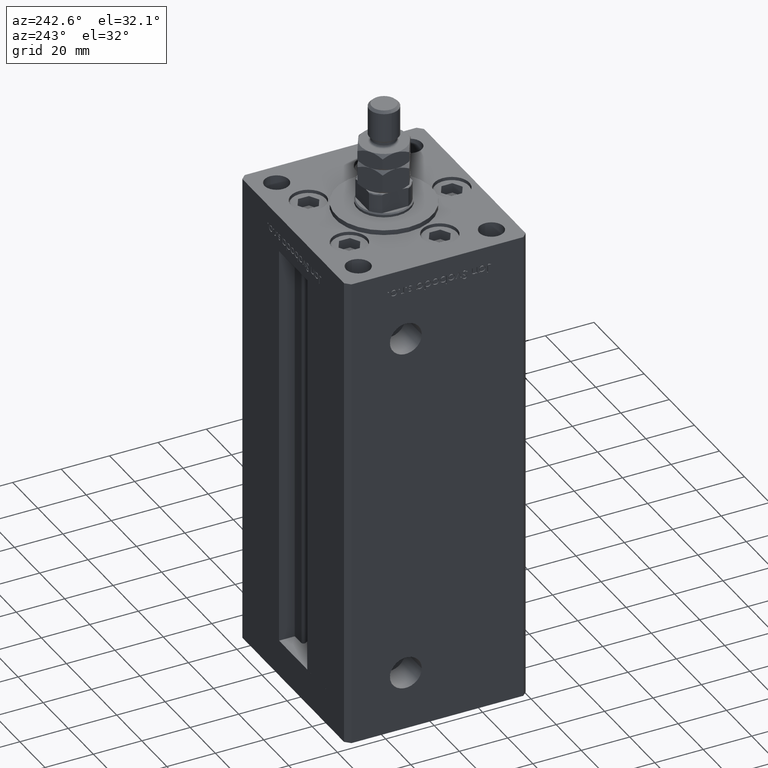
[diagram: clean part render]
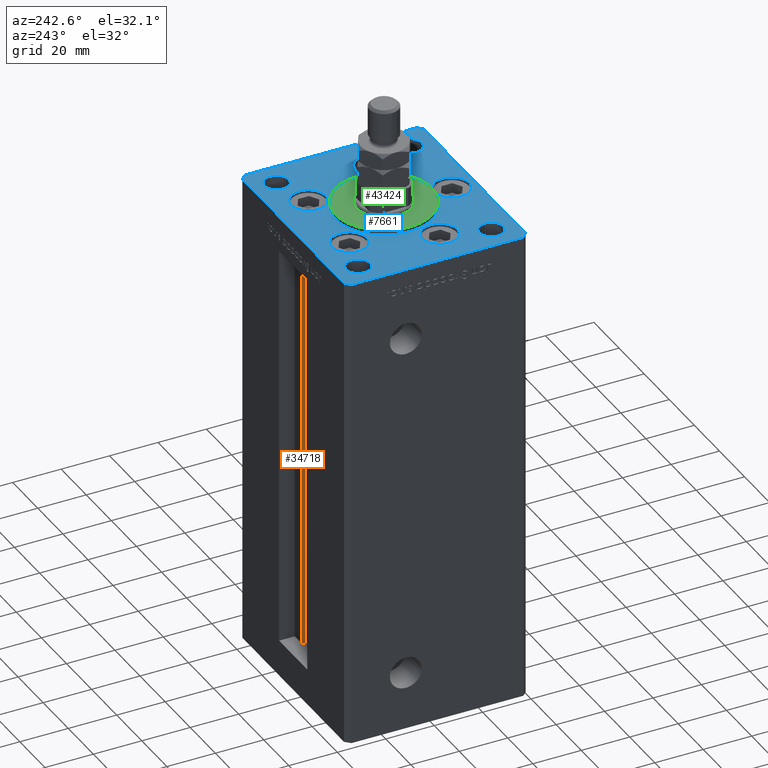
[diagram: same view with three faces highlighted in distinct colors, each labeled with its STEP entity id]
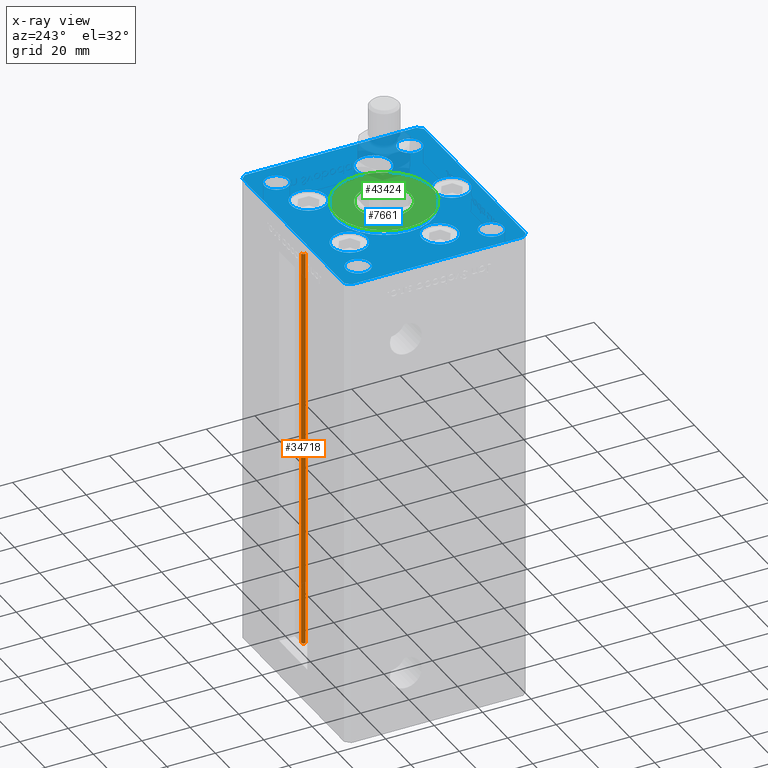
[diagram: x-ray of the same camera — body ghosted, the three highlighted faces saturated]
A machine part, auxiliary view with three faces highlighted in distinct colors.
The next image is the same camera in x-ray (body ghosted, the three faces saturated) — at least one of them is partly hidden behind the body in this view.
Their STEP definitions:

[orange] entity #34718 — the highlighted cylindrical surface (edge-blend (fillet) strip) has radius 0.9333 mm, axis along (0, 0, 1).
#2044 = AXIS2_PLACEMENT_3D ( 'NONE', #38923, #14186, #6307 ) ;
#2215 = EDGE_CURVE ( 'NONE', #42383, #16028, #41298, .T. ) ;
#2235 = CYLINDRICAL_SURFACE ( 'NONE', #2044, 0.9333333333340015914 ) ;
#2566 = EDGE_CURVE ( 'NONE', #41255, #47532, #17873, .T. ) ;
#6307 = DIRECTION ( 'NONE',  ( 1.000000000000000000, 0.000000000000000000, 0.000000000000000000 ) ) ;
#7155 = ORIENTED_EDGE ( 'NONE', *, *, #42105, .F. ) ;
#8721 = ORIENTED_EDGE ( 'NONE', *, *, #36910, .T. ) ;
#11903 = CARTESIAN_POINT ( 'NONE',  ( 6.183333333333999704, 30.99999999999999289, 0.000000000000000000 ) ) ;
#14186 = DIRECTION ( 'NONE',  ( -0.000000000000000000, -0.000000000000000000, 1.000000000000000000 ) ) ;
#15123 = VECTOR ( 'NONE', #30088, 1000.000000000000000 ) ;
#15387 = CARTESIAN_POINT ( 'NONE',  ( 5.375042956467944499, 29.59999999999898890, 168.5000000000000000 ) ) ;
#16028 = VERTEX_POINT ( 'NONE', #27339 ) ;
#17347 = EDGE_LOOP ( 'NONE', ( #7155, #51778, #8721, #29095 ) ) ;
#17873 = CIRCLE ( 'NONE', #39562, 0.9333333333340015914 ) ;
#18001 = FACE_OUTER_BOUND ( 'NONE', #17347, .T. ) ;
#20703 = DIRECTION ( 'NONE',  ( 0.000000000000000000, 0.000000000000000000, -1.000000000000000000 ) ) ;
#23579 = CARTESIAN_POINT ( 'NONE',  ( 6.183333333333999704, 30.06666666666599141, 0.000000000000000000 ) ) ;
#24423 = DIRECTION ( 'NONE',  ( -0.000000000000000000, -0.000000000000000000, 1.000000000000000000 ) ) ;
#25744 = LINE ( 'NONE', #38522, #15123 ) ;
#27339 = CARTESIAN_POINT ( 'NONE',  ( 6.183333333333999704, 30.99999999999999289, 0.000000000000000000 ) ) ;
#29095 = ORIENTED_EDGE ( 'NONE', *, *, #2566, .T. ) ;
#30088 = DIRECTION ( 'NONE',  ( -0.000000000000000000, -0.000000000000000000, 1.000000000000000000 ) ) ;
#34718 = ADVANCED_FACE ( 'NONE', ( #18001 ), #2235, .T. ) ;
#36064 = DIRECTION ( 'NONE',  ( -0.000000000000000000, -0.000000000000000000, -1.000000000000000000 ) ) ;
#36910 = EDGE_CURVE ( 'NONE', #42383, #41255, #25744, .T. ) ;
#37663 = CARTESIAN_POINT ( 'NONE',  ( 6.183333333333999704, 30.99999999999999289, 168.5000000000000000 ) ) ;
#37876 = VECTOR ( 'NONE', #24423, 1000.000000000000000 ) ;
#38522 = CARTESIAN_POINT ( 'NONE',  ( 5.375042956467943611, 29.59999999999899245, 0.000000000000000000 ) ) ;
#38923 = CARTESIAN_POINT ( 'NONE',  ( 6.183333333333999704, 30.06666666666599141, 0.000000000000000000 ) ) ;
#39562 = AXIS2_PLACEMENT_3D ( 'NONE', #53569, #20703, #41082 ) ;
#41082 = DIRECTION ( 'NONE',  ( 1.000000000000000000, 0.000000000000000000, 0.000000000000000000 ) ) ;
#41255 = VERTEX_POINT ( 'NONE', #15387 ) ;
#41298 = CIRCLE ( 'NONE', #52587, 0.9333333333340015914 ) ;
#42105 = EDGE_CURVE ( 'NONE', #16028, #47532, #49119, .T. ) ;
#42383 = VERTEX_POINT ( 'NONE', #48138 ) ;
#47532 = VERTEX_POINT ( 'NONE', #37663 ) ;
#48138 = CARTESIAN_POINT ( 'NONE',  ( 5.375042956467943611, 29.59999999999899245, 0.000000000000000000 ) ) ;
#49119 = LINE ( 'NONE', #11903, #37876 ) ;
#51778 = ORIENTED_EDGE ( 'NONE', *, *, #2215, .F. ) ;
#52587 = AXIS2_PLACEMENT_3D ( 'NONE', #23579, #36064, #52632 ) ;
#52632 = DIRECTION ( 'NONE',  ( 1.000000000000000000, 0.000000000000000000, 0.000000000000000000 ) ) ;
#53569 = CARTESIAN_POINT ( 'NONE',  ( 6.183333333333999704, 30.06666666666599141, 168.5000000000000000 ) ) ;

[blue] entity #7661 — the highlighted planar face has unit normal (0, 0, 1).
#169 = EDGE_CURVE ( 'NONE', #36250, #38002, #19421, .T. ) ;
#345 = DIRECTION ( 'NONE',  ( -1.000000000000000000, -4.283267841918041508E-16, 0.000000000000000000 ) ) ;
#548 = CARTESIAN_POINT ( 'NONE',  ( -42.50000000000000000, -35.50000000000004263, 0.000000000000000000 ) ) ;
#569 = CARTESIAN_POINT ( 'NONE',  ( 42.50000000000001421, 35.50000000000002132, 0.000000000000000000 ) ) ;
#1111 = CIRCLE ( 'NONE', #23711, 7.249999999999999112 ) ;
#1242 = ORIENTED_EDGE ( 'NONE', *, *, #25523, .F. ) ;
#1543 = AXIS2_PLACEMENT_3D ( 'NONE', #9942, #14290, #13216 ) ;
#2078 = EDGE_CURVE ( 'NONE', #46442, #41746, #17066, .T. ) ;
#2375 = EDGE_LOOP ( 'NONE', ( #24927, #52544, #9329, #21200, #5778, #24818, #38513, #19623 ) ) ;
#2645 = DIRECTION ( 'NONE',  ( 0.000000000000000000, 0.000000000000000000, 1.000000000000000000 ) ) ;
#2768 = DIRECTION ( 'NONE',  ( 1.000000000000000000, 0.000000000000000000, 0.000000000000000000 ) ) ;
#2993 = EDGE_LOOP ( 'NONE', ( #40167, #32304 ) ) ;
#3162 = DIRECTION ( 'NONE',  ( 1.000000000000000000, 0.000000000000000000, 0.000000000000000000 ) ) ;
#3209 = CARTESIAN_POINT ( 'NONE',  ( 27.50000000000000355, 27.49999999999999645, 0.000000000000000000 ) ) ;
#3375 = VERTEX_POINT ( 'NONE', #25118 ) ;
#4284 = CIRCLE ( 'NONE', #34671, 4.999999999999997335 ) ;
#4366 = CARTESIAN_POINT ( 'NONE',  ( 32.50000000000000000, -27.50000000000000355, 0.000000000000000000 ) ) ;
#4962 = DIRECTION ( 'NONE',  ( -0.000000000000000000, -0.000000000000000000, -1.000000000000000000 ) ) ;
#5025 = LINE ( 'NONE', #17797, #44069 ) ;
#5169 = LINE ( 'NONE', #47003, #44205 ) ;
#5566 = AXIS2_PLACEMENT_3D ( 'NONE', #32915, #41055, #20678 ) ;
#5778 = ORIENTED_EDGE ( 'NONE', *, *, #18572, .T. ) ;
#5802 = CIRCLE ( 'NONE', #45720, 7.249999999999999112 ) ;
#5853 = EDGE_CURVE ( 'NONE', #37620, #27777, #33522, .T. ) ;
#5880 = EDGE_CURVE ( 'NONE', #22362, #19020, #47381, .T. ) ;
#5976 = ORIENTED_EDGE ( 'NONE', *, *, #18637, .F. ) ;
#6290 = ORIENTED_EDGE ( 'NONE', *, *, #5853, .F. ) ;
#7160 = FACE_BOUND ( 'NONE', #26911, .T. ) ;
#7661 = ADVANCED_FACE ( 'NONE', ( #35970, #48447, #11227, #27013, #7160, #19118, #44650, #23741, #35698, #15590, #19660 ), #36229, .T. ) ;
#7742 = CARTESIAN_POINT ( 'NONE',  ( -9.072913342905442491, 22.74999999999999289, 0.000000000000000000 ) ) ;
#8329 = VECTOR ( 'NONE', #30108, 1000.000000000000000 ) ;
#8628 = EDGE_CURVE ( 'NONE', #21466, #14293, #37118, .T. ) ;
#8903 = VECTOR ( 'NONE', #40092, 1000.000000000000000 ) ;
#9329 = ORIENTED_EDGE ( 'NONE', *, *, #9430, .T. ) ;
#9420 = AXIS2_PLACEMENT_3D ( 'NONE', #15583, #49506, #15846 ) ;
#9430 = EDGE_CURVE ( 'NONE', #41746, #34884, #5025, .T. ) ;
#9498 = AXIS2_PLACEMENT_3D ( 'NONE', #32515, #23819, #45252 ) ;
#9707 = DIRECTION ( 'NONE',  ( 0.000000000000000000, 0.000000000000000000, 1.000000000000000000 ) ) ;
#9762 = VERTEX_POINT ( 'NONE', #43263 ) ;
#9912 = DIRECTION ( 'NONE',  ( -1.000000000000000000, 0.000000000000000000, 0.000000000000000000 ) ) ;
#9942 = CARTESIAN_POINT ( 'NONE',  ( 26.39865316429777664, -9.333333333333330373, 0.000000000000000000 ) ) ;
#10046 = CARTESIAN_POINT ( 'NONE',  ( 32.50000000000000000, 27.49999999999999645, 0.000000000000000000 ) ) ;
#10244 = DIRECTION ( 'NONE',  ( 1.000000000000000000, 0.000000000000000000, 0.000000000000000000 ) ) ;
#10438 = DIRECTION ( 'NONE',  ( 0.000000000000000000, 0.000000000000000000, 1.000000000000000000 ) ) ;
#11126 = CARTESIAN_POINT ( 'NONE',  ( 0.000000000000000000, -6.938893903907228378E-15, 0.000000000000000000 ) ) ;
#11227 = FACE_BOUND ( 'NONE', #21920, .T. ) ;
#12018 = VECTOR ( 'NONE', #51712, 1000.000000000000000 ) ;
#12087 = CIRCLE ( 'NONE', #39014, 20.00000000000000000 ) ;
#12111 = CARTESIAN_POINT ( 'NONE',  ( 23.57291334290544071, 22.74999999999999289, 0.000000000000000000 ) ) ;
#12122 = AXIS2_PLACEMENT_3D ( 'NONE', #21990, #38557, #26331 ) ;
#12244 = EDGE_CURVE ( 'NONE', #25896, #33450, #46727, .T. ) ;
#12835 = VERTEX_POINT ( 'NONE', #42287 ) ;
#13216 = DIRECTION ( 'NONE',  ( 1.000000000000000000, 0.000000000000000000, 0.000000000000000000 ) ) ;
#13421 = CARTESIAN_POINT ( 'NONE',  ( -32.50000000000000000, 27.50000000000000711, 0.000000000000000000 ) ) ;
#13510 = CARTESIAN_POINT ( 'NONE',  ( 37.50000000000000000, -27.50000000000000355, 0.000000000000000000 ) ) ;
#13836 = CIRCLE ( 'NONE', #29445, 4.999999999999997335 ) ;
#13903 = EDGE_CURVE ( 'NONE', #26708, #35127, #26890, .T. ) ;
#14290 = DIRECTION ( 'NONE',  ( 0.000000000000000000, 0.000000000000000000, 1.000000000000000000 ) ) ;
#14291 = DIRECTION ( 'NONE',  ( 1.000000000000000000, 0.000000000000000000, 0.000000000000000000 ) ) ;
#14293 = VERTEX_POINT ( 'NONE', #29456 ) ;
#14675 = DIRECTION ( 'NONE',  ( 0.000000000000000000, 0.000000000000000000, 1.000000000000000000 ) ) ;
#14774 = DIRECTION ( 'NONE',  ( 1.000000000000000000, 0.000000000000000000, 0.000000000000000000 ) ) ;
#14987 = DIRECTION ( 'NONE',  ( 1.000000000000000000, 0.000000000000000000, 0.000000000000000000 ) ) ;
#15007 = CARTESIAN_POINT ( 'NONE',  ( 40.50000000000000711, 37.50000000000000711, 0.000000000000000000 ) ) ;
#15087 = ORIENTED_EDGE ( 'NONE', *, *, #18566, .T. ) ;
#15092 = VERTEX_POINT ( 'NONE', #7742 ) ;
#15218 = EDGE_CURVE ( 'NONE', #34884, #27786, #39219, .T. ) ;
#15454 = AXIS2_PLACEMENT_3D ( 'NONE', #22896, #35919, #2768 ) ;
#15583 = CARTESIAN_POINT ( 'NONE',  ( -32.50000000000000000, -27.50000000000000355, 0.000000000000000000 ) ) ;
#15590 = FACE_OUTER_BOUND ( 'NONE', #2375, .T. ) ;
#15694 = EDGE_CURVE ( 'NONE', #33450, #25896, #21689, .T. ) ;
#15846 = DIRECTION ( 'NONE',  ( 1.000000000000000000, 0.000000000000000000, 0.000000000000000000 ) ) ;
#16015 = CIRCLE ( 'NONE', #5566, 7.249999999999999112 ) ;
#16278 = ORIENTED_EDGE ( 'NONE', *, *, #35330, .F. ) ;
#16487 = LINE ( 'NONE', #46608, #28863 ) ;
#16586 = CARTESIAN_POINT ( 'NONE',  ( -27.50000000000000000, -27.50000000000000355, 0.000000000000000000 ) ) ;
#16671 = LINE ( 'NONE', #33774, #20637 ) ;
#16710 = DIRECTION ( 'NONE',  ( -1.000000000000000000, 0.000000000000000000, 0.000000000000000000 ) ) ;
#17019 = AXIS2_PLACEMENT_3D ( 'NONE', #43120, #9707, #10244 ) ;
#17066 = LINE ( 'NONE', #26311, #8329 ) ;
#17218 = ORIENTED_EDGE ( 'NONE', *, *, #8628, .F. ) ;
#17608 = VERTEX_POINT ( 'NONE', #548 ) ;
#17637 = CIRCLE ( 'NONE', #35884, 7.249999999999999112 ) ;
#17797 = CARTESIAN_POINT ( 'NONE',  ( 40.50000000000001421, -37.49999999999992184, 0.000000000000000000 ) ) ;
#18024 = EDGE_CURVE ( 'NONE', #47439, #42896, #24259, .T. ) ;
#18303 = CIRCLE ( 'NONE', #40858, 5.000000000000004441 ) ;
#18343 = CARTESIAN_POINT ( 'NONE',  ( -26.39865316429777664, -9.333333333333330373, 0.000000000000000000 ) ) ;
#18454 = ORIENTED_EDGE ( 'NONE', *, *, #30028, .F. ) ;
#18566 = EDGE_CURVE ( 'NONE', #42896, #47439, #13836, .T. ) ;
#18572 = EDGE_CURVE ( 'NONE', #27786, #34661, #5169, .T. ) ;
#18637 = EDGE_CURVE ( 'NONE', #35127, #26708, #4284, .T. ) ;
#18689 = EDGE_CURVE ( 'NONE', #27777, #37620, #12087, .T. ) ;
#19020 = VERTEX_POINT ( 'NONE', #41460 ) ;
#19118 = FACE_BOUND ( 'NONE', #35939, .T. ) ;
#19421 = CIRCLE ( 'NONE', #26365, 7.249999999999999112 ) ;
#19623 = ORIENTED_EDGE ( 'NONE', *, *, #27487, .T. ) ;
#19660 = FACE_BOUND ( 'NONE', #29567, .T. ) ;
#20517 = LINE ( 'NONE', #23524, #8903 ) ;
#20637 = VECTOR ( 'NONE', #345, 1000.000000000000000 ) ;
#20678 = DIRECTION ( 'NONE',  ( 1.000000000000000000, 0.000000000000000000, 0.000000000000000000 ) ) ;
#20989 = AXIS2_PLACEMENT_3D ( 'NONE', #29927, #25858, #46218 ) ;
#21200 = ORIENTED_EDGE ( 'NONE', *, *, #15218, .T. ) ;
#21209 = AXIS2_PLACEMENT_3D ( 'NONE', #36317, #4962, #32785 ) ;
#21466 = VERTEX_POINT ( 'NONE', #26342 ) ;
#21689 = CIRCLE ( 'NONE', #12122, 5.000000000000000888 ) ;
#21740 = EDGE_LOOP ( 'NONE', ( #29284, #37153 ) ) ;
#21920 = EDGE_LOOP ( 'NONE', ( #18454, #36631 ) ) ;
#21990 = CARTESIAN_POINT ( 'NONE',  ( -32.50000000000000000, -27.50000000000000355, 0.000000000000000000 ) ) ;
#22156 = EDGE_LOOP ( 'NONE', ( #5976, #38226 ) ) ;
#22362 = VERTEX_POINT ( 'NONE', #51040 ) ;
#22573 = EDGE_CURVE ( 'NONE', #29678, #50394, #18303, .T. ) ;
#22896 = CARTESIAN_POINT ( 'NONE',  ( 0.000000000000000000, -28.00000000000000000, 0.000000000000000000 ) ) ;
#23524 = CARTESIAN_POINT ( 'NONE',  ( -40.50000000000000000, 37.49999999999997158, 0.000000000000000000 ) ) ;
#23711 = AXIS2_PLACEMENT_3D ( 'NONE', #50706, #39029, #14291 ) ;
#23741 = FACE_BOUND ( 'NONE', #22156, .T. ) ;
#23777 = CIRCLE ( 'NONE', #51534, 7.250000000000000000 ) ;
#23819 = DIRECTION ( 'NONE',  ( 0.000000000000000000, 0.000000000000000000, 1.000000000000000000 ) ) ;
#23861 = ORIENTED_EDGE ( 'NONE', *, *, #45994, .F. ) ;
#24259 = CIRCLE ( 'NONE', #39882, 4.999999999999997335 ) ;
#24818 = ORIENTED_EDGE ( 'NONE', *, *, #41673, .T. ) ;
#24927 = ORIENTED_EDGE ( 'NONE', *, *, #31800, .T. ) ;
#25118 = CARTESIAN_POINT ( 'NONE',  ( -23.57291334290544071, 22.74999999999999289, 0.000000000000000000 ) ) ;
#25220 = CARTESIAN_POINT ( 'NONE',  ( 37.50000000000000000, 27.49999999999999645, 0.000000000000000000 ) ) ;
#25523 = EDGE_CURVE ( 'NONE', #9762, #12835, #26186, .T. ) ;
#25858 = DIRECTION ( 'NONE',  ( 0.000000000000000000, 0.000000000000000000, 1.000000000000000000 ) ) ;
#25896 = VERTEX_POINT ( 'NONE', #40704 ) ;
#26176 = ORIENTED_EDGE ( 'NONE', *, *, #18689, .F. ) ;
#26186 = CIRCLE ( 'NONE', #20989, 7.249999999999999112 ) ;
#26233 = DIRECTION ( 'NONE',  ( 1.000000000000000000, 0.000000000000000000, 0.000000000000000000 ) ) ;
#26311 = CARTESIAN_POINT ( 'NONE',  ( -40.50000000000000711, -37.50000000000003553, 0.000000000000000000 ) ) ;
#26331 = DIRECTION ( 'NONE',  ( 1.000000000000000000, 0.000000000000000000, 0.000000000000000000 ) ) ;
#26342 = CARTESIAN_POINT ( 'NONE',  ( -7.250000000000000000, -28.00000000000000000, 0.000000000000000000 ) ) ;
#26365 = AXIS2_PLACEMENT_3D ( 'NONE', #43316, #10438, #39520 ) ;
#26442 = ORIENTED_EDGE ( 'NONE', *, *, #5880, .F. ) ;
#26635 = DIRECTION ( 'NONE',  ( 1.000000000000000000, 0.000000000000000000, 0.000000000000000000 ) ) ;
#26708 = VERTEX_POINT ( 'NONE', #3209 ) ;
#26890 = CIRCLE ( 'NONE', #9498, 4.999999999999997335 ) ;
#26911 = EDGE_LOOP ( 'NONE', ( #16278, #17218 ) ) ;
#27013 = FACE_BOUND ( 'NONE', #51673, .T. ) ;
#27487 = EDGE_CURVE ( 'NONE', #41998, #17608, #16487, .T. ) ;
#27777 = VERTEX_POINT ( 'NONE', #38070 ) ;
#27786 = VERTEX_POINT ( 'NONE', #569 ) ;
#28086 = CARTESIAN_POINT ( 'NONE',  ( -42.50000000000000000, -35.50000000000004263, 0.000000000000000000 ) ) ;
#28388 = CARTESIAN_POINT ( 'NONE',  ( -37.50000000000000711, 27.50000000000000711, 0.000000000000000000 ) ) ;
#28516 = EDGE_CURVE ( 'NONE', #40659, #41998, #20517, .T. ) ;
#28863 = VECTOR ( 'NONE', #41731, 1000.000000000000000 ) ;
#29269 = EDGE_CURVE ( 'NONE', #3375, #15092, #1111, .T. ) ;
#29284 = ORIENTED_EDGE ( 'NONE', *, *, #36555, .F. ) ;
#29428 = CARTESIAN_POINT ( 'NONE',  ( 9.072913342905442491, 22.74999999999999289, 0.000000000000000000 ) ) ;
#29445 = AXIS2_PLACEMENT_3D ( 'NONE', #4366, #38330, #38598 ) ;
#29456 = CARTESIAN_POINT ( 'NONE',  ( 7.250000000000000000, -28.00000000000000000, 0.000000000000000000 ) ) ;
#29567 = EDGE_LOOP ( 'NONE', ( #15087, #42441 ) ) ;
#29678 = VERTEX_POINT ( 'NONE', #43835 ) ;
#29927 = CARTESIAN_POINT ( 'NONE',  ( -26.39865316429777664, -9.333333333333330373, 0.000000000000000000 ) ) ;
#30001 = DIRECTION ( 'NONE',  ( -0.000000000000000000, -0.000000000000000000, -1.000000000000000000 ) ) ;
#30028 = EDGE_CURVE ( 'NONE', #38002, #36250, #17637, .T. ) ;
#30108 = DIRECTION ( 'NONE',  ( 1.000000000000000000, 1.370645709413773283E-15, 0.000000000000000000 ) ) ;
#30303 = DIRECTION ( 'NONE',  ( 0.7071067811865474617, 0.7071067811865474617, 0.000000000000000000 ) ) ;
#30375 = CARTESIAN_POINT ( 'NONE',  ( 26.39865316429777664, -9.333333333333330373, 0.000000000000000000 ) ) ;
#30916 = DIRECTION ( 'NONE',  ( 1.000000000000000000, 0.000000000000000000, 0.000000000000000000 ) ) ;
#31463 = CARTESIAN_POINT ( 'NONE',  ( 0.000000000000000000, -28.00000000000000000, 0.000000000000000000 ) ) ;
#31536 = CARTESIAN_POINT ( 'NONE',  ( -20.00000000000000000, -6.938893903907228378E-15, 0.000000000000000000 ) ) ;
#31583 = DIRECTION ( 'NONE',  ( 0.000000000000000000, 0.000000000000000000, 1.000000000000000000 ) ) ;
#31800 = EDGE_CURVE ( 'NONE', #17608, #46442, #32435, .T. ) ;
#32283 = CARTESIAN_POINT ( 'NONE',  ( 27.50000000000000355, -27.50000000000000355, 0.000000000000000000 ) ) ;
#32304 = ORIENTED_EDGE ( 'NONE', *, *, #37112, .T. ) ;
#32435 = LINE ( 'NONE', #28086, #47182 ) ;
#32515 = CARTESIAN_POINT ( 'NONE',  ( 32.50000000000000000, 27.49999999999999645, 0.000000000000000000 ) ) ;
#32785 = DIRECTION ( 'NONE',  ( -1.000000000000000000, 0.000000000000000000, 0.000000000000000000 ) ) ;
#32915 = CARTESIAN_POINT ( 'NONE',  ( -16.32291334290544071, 22.74999999999999289, 0.000000000000000000 ) ) ;
#33450 = VERTEX_POINT ( 'NONE', #16586 ) ;
#33522 = CIRCLE ( 'NONE', #17019, 20.00000000000000000 ) ;
#33594 = AXIS2_PLACEMENT_3D ( 'NONE', #51998, #43571, #14774 ) ;
#33774 = CARTESIAN_POINT ( 'NONE',  ( 40.50000000000000711, 37.50000000000000711, 0.000000000000000000 ) ) ;
#34661 = VERTEX_POINT ( 'NONE', #15007 ) ;
#34671 = AXIS2_PLACEMENT_3D ( 'NONE', #10046, #14675, #35602 ) ;
#34884 = VERTEX_POINT ( 'NONE', #42381 ) ;
#35127 = VERTEX_POINT ( 'NONE', #25220 ) ;
#35330 = EDGE_CURVE ( 'NONE', #14293, #21466, #23777, .T. ) ;
#35602 = DIRECTION ( 'NONE',  ( 1.000000000000000000, 0.000000000000000000, 0.000000000000000000 ) ) ;
#35698 = FACE_BOUND ( 'NONE', #46973, .T. ) ;
#35884 = AXIS2_PLACEMENT_3D ( 'NONE', #52738, #31583, #14987 ) ;
#35919 = DIRECTION ( 'NONE',  ( 0.000000000000000000, 0.000000000000000000, 1.000000000000000000 ) ) ;
#35939 = EDGE_LOOP ( 'NONE', ( #1242, #40624 ) ) ;
#35970 = FACE_BOUND ( 'NONE', #51789, .T. ) ;
#36229 = PLANE ( 'NONE',  #33594 ) ;
#36250 = VERTEX_POINT ( 'NONE', #29428 ) ;
#36317 = CARTESIAN_POINT ( 'NONE',  ( -32.50000000000000000, 27.50000000000000711, 0.000000000000000000 ) ) ;
#36321 = DIRECTION ( 'NONE',  ( 0.000000000000000000, 0.000000000000000000, 1.000000000000000000 ) ) ;
#36555 = EDGE_CURVE ( 'NONE', #15092, #3375, #16015, .T. ) ;
#36631 = ORIENTED_EDGE ( 'NONE', *, *, #169, .F. ) ;
#36811 = ORIENTED_EDGE ( 'NONE', *, *, #12244, .F. ) ;
#37112 = EDGE_CURVE ( 'NONE', #50394, #29678, #42014, .T. ) ;
#37118 = CIRCLE ( 'NONE', #15454, 7.250000000000000000 ) ;
#37153 = ORIENTED_EDGE ( 'NONE', *, *, #29269, .F. ) ;
#37620 = VERTEX_POINT ( 'NONE', #31536 ) ;
#38002 = VERTEX_POINT ( 'NONE', #12111 ) ;
#38070 = CARTESIAN_POINT ( 'NONE',  ( 20.00000000000000000, -4.489600305612522259E-15, 0.000000000000000000 ) ) ;
#38226 = ORIENTED_EDGE ( 'NONE', *, *, #13903, .F. ) ;
#38330 = DIRECTION ( 'NONE',  ( -0.000000000000000000, -0.000000000000000000, -1.000000000000000000 ) ) ;
#38513 = ORIENTED_EDGE ( 'NONE', *, *, #28516, .T. ) ;
#38557 = DIRECTION ( 'NONE',  ( 0.000000000000000000, 0.000000000000000000, 1.000000000000000000 ) ) ;
#38598 = DIRECTION ( 'NONE',  ( -1.000000000000000000, 0.000000000000000000, 0.000000000000000000 ) ) ;
#38864 = DIRECTION ( 'NONE',  ( 0.000000000000000000, 0.000000000000000000, 1.000000000000000000 ) ) ;
#39014 = AXIS2_PLACEMENT_3D ( 'NONE', #11126, #38864, #26635 ) ;
#39029 = DIRECTION ( 'NONE',  ( 0.000000000000000000, 0.000000000000000000, 1.000000000000000000 ) ) ;
#39182 = CARTESIAN_POINT ( 'NONE',  ( 40.50000000000001421, -37.49999999999992184, 0.000000000000000000 ) ) ;
#39219 = LINE ( 'NONE', #47088, #12018 ) ;
#39520 = DIRECTION ( 'NONE',  ( 1.000000000000000000, 0.000000000000000000, 0.000000000000000000 ) ) ;
#39882 = AXIS2_PLACEMENT_3D ( 'NONE', #49667, #47128, #9912 ) ;
#40092 = DIRECTION ( 'NONE',  ( -0.7071067811865536790, -0.7071067811865414665, 0.000000000000000000 ) ) ;
#40167 = ORIENTED_EDGE ( 'NONE', *, *, #22573, .T. ) ;
#40624 = ORIENTED_EDGE ( 'NONE', *, *, #43289, .F. ) ;
#40659 = VERTEX_POINT ( 'NONE', #48150 ) ;
#40704 = CARTESIAN_POINT ( 'NONE',  ( -37.50000000000000711, -27.50000000000000355, 0.000000000000000000 ) ) ;
#40858 = AXIS2_PLACEMENT_3D ( 'NONE', #13421, #30001, #16710 ) ;
#41055 = DIRECTION ( 'NONE',  ( 0.000000000000000000, 0.000000000000000000, 1.000000000000000000 ) ) ;
#41449 = CIRCLE ( 'NONE', #1543, 7.249999999999999112 ) ;
#41460 = CARTESIAN_POINT ( 'NONE',  ( 19.14865316429777664, -9.333333333333328596, 0.000000000000000000 ) ) ;
#41673 = EDGE_CURVE ( 'NONE', #34661, #40659, #16671, .T. ) ;
#41731 = DIRECTION ( 'NONE',  ( 9.773090005503134168E-17, -1.000000000000000000, 0.000000000000000000 ) ) ;
#41746 = VERTEX_POINT ( 'NONE', #39182 ) ;
#41998 = VERTEX_POINT ( 'NONE', #51607 ) ;
#42014 = CIRCLE ( 'NONE', #21209, 5.000000000000004441 ) ;
#42120 = DIRECTION ( 'NONE',  ( -0.7071067811865524577, 0.7071067811865426878, 0.000000000000000000 ) ) ;
#42233 = AXIS2_PLACEMENT_3D ( 'NONE', #30375, #2645, #30916 ) ;
#42287 = CARTESIAN_POINT ( 'NONE',  ( -33.64865316429777664, -9.333333333333328596, 0.000000000000000000 ) ) ;
#42381 = CARTESIAN_POINT ( 'NONE',  ( 42.50000000000000711, -35.49999999999992895, 0.000000000000000000 ) ) ;
#42441 = ORIENTED_EDGE ( 'NONE', *, *, #18024, .T. ) ;
#42896 = VERTEX_POINT ( 'NONE', #13510 ) ;
#43120 = CARTESIAN_POINT ( 'NONE',  ( 0.000000000000000000, -6.938893903907228378E-15, 0.000000000000000000 ) ) ;
#43263 = CARTESIAN_POINT ( 'NONE',  ( -19.14865316429777664, -9.333333333333330373, 0.000000000000000000 ) ) ;
#43289 = EDGE_CURVE ( 'NONE', #12835, #9762, #5802, .T. ) ;
#43316 = CARTESIAN_POINT ( 'NONE',  ( 16.32291334290544071, 22.74999999999999289, 0.000000000000000000 ) ) ;
#43571 = DIRECTION ( 'NONE',  ( -0.000000000000000000, 0.000000000000000000, 1.000000000000000000 ) ) ;
#43835 = CARTESIAN_POINT ( 'NONE',  ( -27.50000000000000000, 27.50000000000000711, 0.000000000000000000 ) ) ;
#44069 = VECTOR ( 'NONE', #30303, 1000.000000000000114 ) ;
#44205 = VECTOR ( 'NONE', #42120, 1000.000000000000000 ) ;
#44646 = DIRECTION ( 'NONE',  ( 0.7071067811865487940, -0.7071067811865463515, 0.000000000000000000 ) ) ;
#44650 = FACE_BOUND ( 'NONE', #2993, .T. ) ;
#45252 = DIRECTION ( 'NONE',  ( 1.000000000000000000, 0.000000000000000000, 0.000000000000000000 ) ) ;
#45720 = AXIS2_PLACEMENT_3D ( 'NONE', #18343, #46590, #26233 ) ;
#45866 = CARTESIAN_POINT ( 'NONE',  ( -40.50000000000000711, -37.50000000000003553, 0.000000000000000000 ) ) ;
#45994 = EDGE_CURVE ( 'NONE', #19020, #22362, #41449, .T. ) ;
#46218 = DIRECTION ( 'NONE',  ( 1.000000000000000000, 0.000000000000000000, 0.000000000000000000 ) ) ;
#46442 = VERTEX_POINT ( 'NONE', #45866 ) ;
#46590 = DIRECTION ( 'NONE',  ( 0.000000000000000000, 0.000000000000000000, 1.000000000000000000 ) ) ;
#46608 = CARTESIAN_POINT ( 'NONE',  ( -42.50000000000000711, 35.50000000000000000, 0.000000000000000000 ) ) ;
#46727 = CIRCLE ( 'NONE', #9420, 5.000000000000000888 ) ;
#46973 = EDGE_LOOP ( 'NONE', ( #50333, #36811 ) ) ;
#47003 = CARTESIAN_POINT ( 'NONE',  ( 42.50000000000001421, 35.50000000000002132, 0.000000000000000000 ) ) ;
#47088 = CARTESIAN_POINT ( 'NONE',  ( 42.50000000000000711, -35.49999999999992895, 0.000000000000000000 ) ) ;
#47128 = DIRECTION ( 'NONE',  ( -0.000000000000000000, -0.000000000000000000, -1.000000000000000000 ) ) ;
#47182 = VECTOR ( 'NONE', #44646, 1000.000000000000000 ) ;
#47381 = CIRCLE ( 'NONE', #42233, 7.249999999999999112 ) ;
#47439 = VERTEX_POINT ( 'NONE', #32283 ) ;
#48150 = CARTESIAN_POINT ( 'NONE',  ( -40.50000000000000000, 37.49999999999997158, 0.000000000000000000 ) ) ;
#48447 = FACE_BOUND ( 'NONE', #21740, .T. ) ;
#49506 = DIRECTION ( 'NONE',  ( 0.000000000000000000, 0.000000000000000000, 1.000000000000000000 ) ) ;
#49667 = CARTESIAN_POINT ( 'NONE',  ( 32.50000000000000000, -27.50000000000000355, 0.000000000000000000 ) ) ;
#50333 = ORIENTED_EDGE ( 'NONE', *, *, #15694, .F. ) ;
#50394 = VERTEX_POINT ( 'NONE', #28388 ) ;
#50706 = CARTESIAN_POINT ( 'NONE',  ( -16.32291334290544071, 22.74999999999999289, 0.000000000000000000 ) ) ;
#51040 = CARTESIAN_POINT ( 'NONE',  ( 33.64865316429777664, -9.333333333333330373, 0.000000000000000000 ) ) ;
#51534 = AXIS2_PLACEMENT_3D ( 'NONE', #31463, #36321, #3162 ) ;
#51607 = CARTESIAN_POINT ( 'NONE',  ( -42.50000000000000711, 35.50000000000000000, 0.000000000000000000 ) ) ;
#51673 = EDGE_LOOP ( 'NONE', ( #26442, #23861 ) ) ;
#51712 = DIRECTION ( 'NONE',  ( 9.773090005503145261E-17, 1.000000000000000000, 0.000000000000000000 ) ) ;
#51789 = EDGE_LOOP ( 'NONE', ( #6290, #26176 ) ) ;
#51998 = CARTESIAN_POINT ( 'NONE',  ( 0.000000000000000000, 0.000000000000000000, 0.000000000000000000 ) ) ;
#52544 = ORIENTED_EDGE ( 'NONE', *, *, #2078, .T. ) ;
#52738 = CARTESIAN_POINT ( 'NONE',  ( 16.32291334290544071, 22.74999999999999289, 0.000000000000000000 ) ) ;

[green] entity #43424 — the highlighted planar face has unit normal (0, 0, 1).
#1232 = FACE_OUTER_BOUND ( 'NONE', #8447, .T. ) ;
#2442 = CIRCLE ( 'NONE', #26716, 11.00000000000000000 ) ;
#4534 = VERTEX_POINT ( 'NONE', #51810 ) ;
#4952 = AXIS2_PLACEMENT_3D ( 'NONE', #50936, #30307, #23503 ) ;
#5439 = EDGE_CURVE ( 'NONE', #30204, #20886, #34409, .T. ) ;
#8447 = EDGE_LOOP ( 'NONE', ( #19853, #28580 ) ) ;
#11901 = DIRECTION ( 'NONE',  ( 1.000000000000000000, 0.000000000000000000, 0.000000000000000000 ) ) ;
#18474 = DIRECTION ( 'NONE',  ( 0.000000000000000000, 0.000000000000000000, 1.000000000000000000 ) ) ;
#19853 = ORIENTED_EDGE ( 'NONE', *, *, #31114, .T. ) ;
#20886 = VERTEX_POINT ( 'NONE', #42555 ) ;
#23503 = DIRECTION ( 'NONE',  ( 1.000000000000000000, 0.000000000000000000, -0.000000000000000000 ) ) ;
#24632 = AXIS2_PLACEMENT_3D ( 'NONE', #35350, #51377, #51103 ) ;
#26375 = VERTEX_POINT ( 'NONE', #26469 ) ;
#26469 = CARTESIAN_POINT ( 'NONE',  ( 20.00000000000000000, -4.489600305612522259E-15, 2.000000000000000000 ) ) ;
#26627 = CARTESIAN_POINT ( 'NONE',  ( 0.000000000000000000, -6.938893903907228378E-15, 2.000000000000000000 ) ) ;
#26716 = AXIS2_PLACEMENT_3D ( 'NONE', #41790, #49934, #42326 ) ;
#28580 = ORIENTED_EDGE ( 'NONE', *, *, #34404, .T. ) ;
#30204 = VERTEX_POINT ( 'NONE', #49079 ) ;
#30307 = DIRECTION ( 'NONE',  ( 0.000000000000000000, 0.000000000000000000, 1.000000000000000000 ) ) ;
#31114 = EDGE_CURVE ( 'NONE', #4534, #26375, #52358, .T. ) ;
#32678 = AXIS2_PLACEMENT_3D ( 'NONE', #26627, #18474, #43187 ) ;
#34380 = PLANE ( 'NONE',  #4952 ) ;
#34404 = EDGE_CURVE ( 'NONE', #26375, #4534, #48000, .T. ) ;
#34409 = CIRCLE ( 'NONE', #32678, 11.00000000000000000 ) ;
#35350 = CARTESIAN_POINT ( 'NONE',  ( 0.000000000000000000, -6.938893903907228378E-15, 2.000000000000000000 ) ) ;
#37368 = EDGE_LOOP ( 'NONE', ( #41711, #47470 ) ) ;
#37964 = DIRECTION ( 'NONE',  ( 0.000000000000000000, 0.000000000000000000, 1.000000000000000000 ) ) ;
#38457 = FACE_BOUND ( 'NONE', #37368, .T. ) ;
#41711 = ORIENTED_EDGE ( 'NONE', *, *, #5439, .F. ) ;
#41790 = CARTESIAN_POINT ( 'NONE',  ( 0.000000000000000000, -6.938893903907228378E-15, 2.000000000000000000 ) ) ;
#41942 = AXIS2_PLACEMENT_3D ( 'NONE', #49386, #37964, #11901 ) ;
#42326 = DIRECTION ( 'NONE',  ( 1.000000000000000000, 0.000000000000000000, 0.000000000000000000 ) ) ;
#42555 = CARTESIAN_POINT ( 'NONE',  ( -11.00000000000000000, -5.591782424845139381E-15, 2.000000000000000000 ) ) ;
#43187 = DIRECTION ( 'NONE',  ( 1.000000000000000000, 0.000000000000000000, 0.000000000000000000 ) ) ;
#43424 = ADVANCED_FACE ( 'NONE', ( #38457, #1232 ), #34380, .T. ) ;
#46396 = EDGE_CURVE ( 'NONE', #20886, #30204, #2442, .T. ) ;
#47470 = ORIENTED_EDGE ( 'NONE', *, *, #46396, .F. ) ;
#48000 = CIRCLE ( 'NONE', #41942, 20.00000000000000000 ) ;
#49079 = CARTESIAN_POINT ( 'NONE',  ( 11.00000000000000000, -6.938893903907228378E-15, 2.000000000000000000 ) ) ;
#49386 = CARTESIAN_POINT ( 'NONE',  ( 0.000000000000000000, -6.938893903907228378E-15, 2.000000000000000000 ) ) ;
#49934 = DIRECTION ( 'NONE',  ( 0.000000000000000000, 0.000000000000000000, 1.000000000000000000 ) ) ;
#50936 = CARTESIAN_POINT ( 'NONE',  ( 0.000000000000000000, -6.938893903907228378E-15, 2.000000000000000000 ) ) ;
#51103 = DIRECTION ( 'NONE',  ( 1.000000000000000000, 0.000000000000000000, 0.000000000000000000 ) ) ;
#51377 = DIRECTION ( 'NONE',  ( 0.000000000000000000, 0.000000000000000000, 1.000000000000000000 ) ) ;
#51810 = CARTESIAN_POINT ( 'NONE',  ( -20.00000000000000000, -6.938893903907228378E-15, 2.000000000000000000 ) ) ;
#52358 = CIRCLE ( 'NONE', #24632, 20.00000000000000000 ) ;